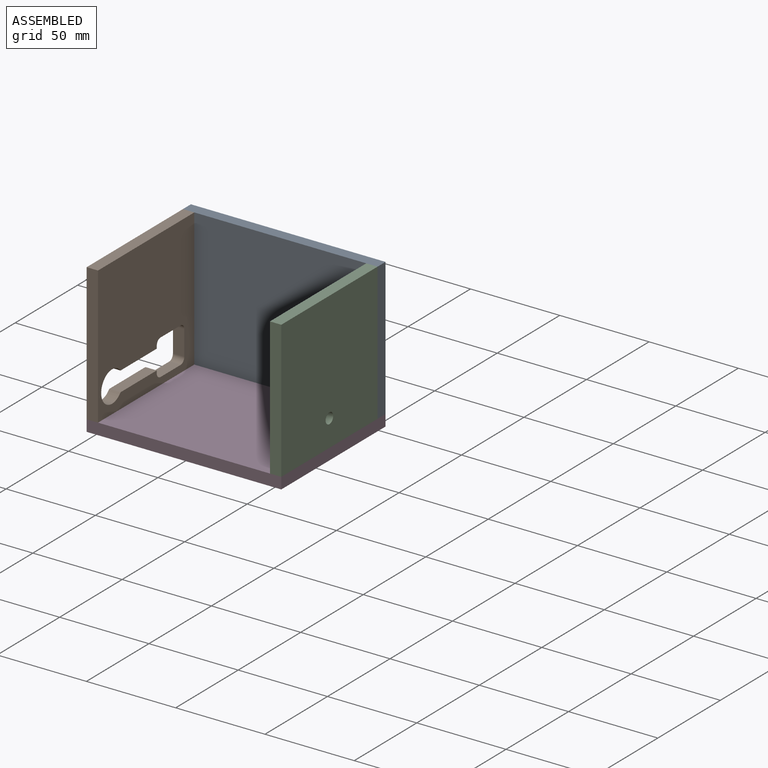
[diagram: assembled view]
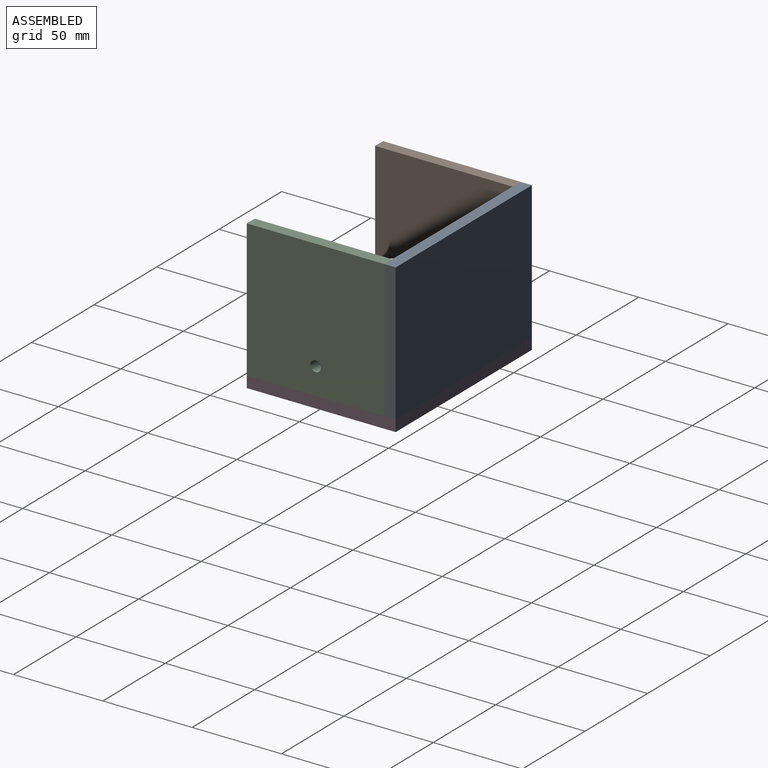
[diagram: assembled view, second angle]
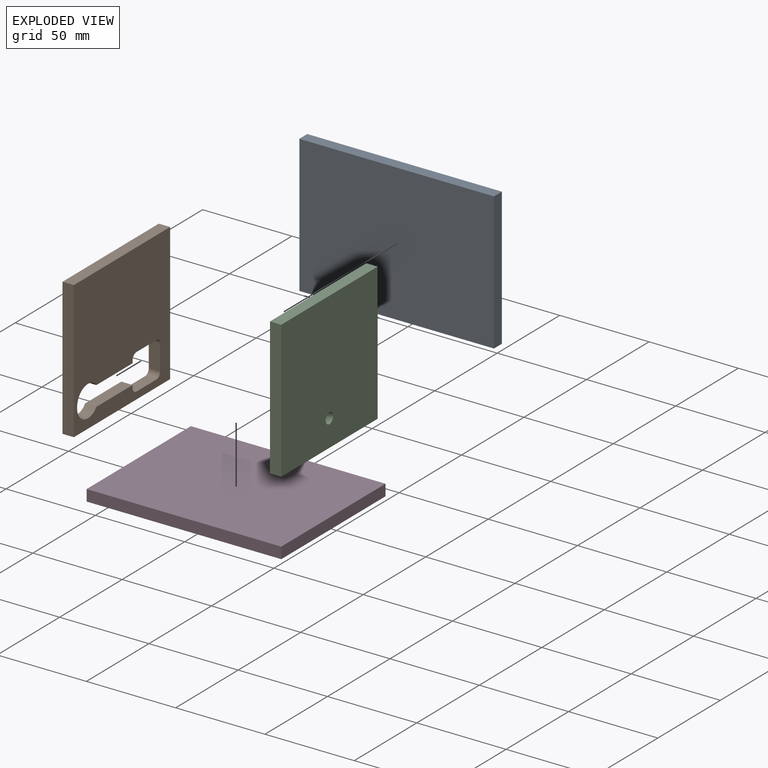
[diagram: exploded view]
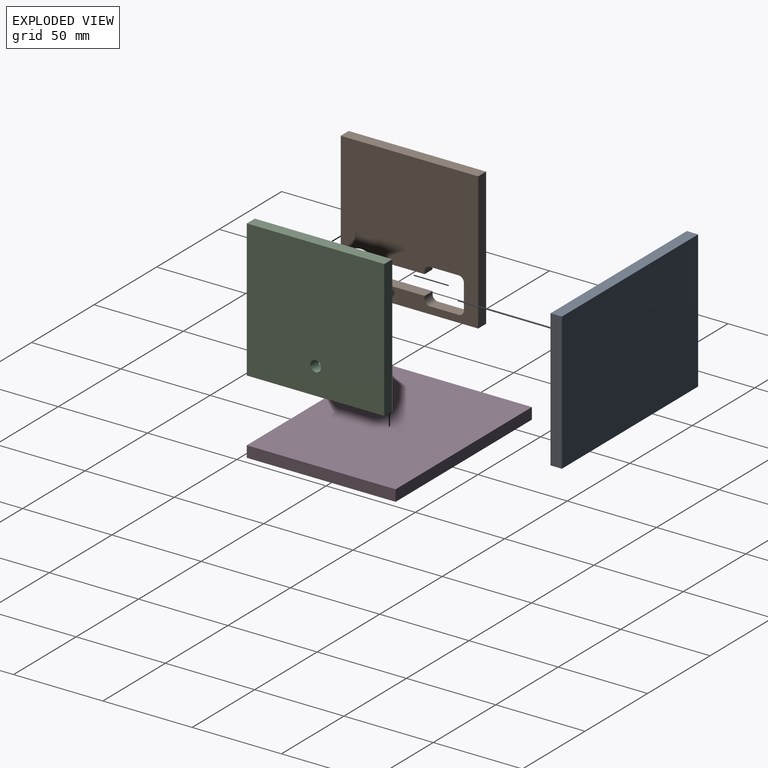
[diagram: exploded view, second angle]
ASSEMBLY  parts=4 mates=3
PART A: 6 faces, bbox 109x6.4x77 mm
  f0: plane 109x6.35mm, normal (0,0,1), area 692.2mm2, adj f1,f3,f4,f5
  f1: plane 77x6.35mm, normal (-1,0,0), area 488.9mm2, adj f0,f2,f4,f5
  f2: plane 109x6.35mm, normal (0,0,-1), area 692.2mm2, adj f1,f3,f4,f5
  f3: plane 77x6.35mm, normal (1,0,0), area 488.9mm2, adj f0,f2,f4,f5
  f4: plane 109x77mm, normal (0,-1,0), area 8393mm2, adj f0,f1,f2,f3
  f5: plane 109x77mm, normal (0,1,0), area 8393mm2, adj f0,f1,f2,f3
PART B: 18 faces, bbox 77x6.4x77 mm
  f0: plane 77x6.35mm, normal (0,0,1), area 488.9mm2, adj f1,f15,f16,f17
  f1: plane 77x6.35mm, normal (-1,0,0), area 488.9mm2, adj f0,f2,f16,f17
  f2: plane 77x6.35mm, normal (0,0,-1), area 488.9mm2, adj f1,f15,f16,f17
  f3: cylinder r=3mm len=6.35mm, axis (0,1,0), area 29.9mm2, adj f4,f14,f16,f17
  f4: plane 16x6.35mm, normal (0,0,1), area 101.6mm2, adj f3,f5,f16,f17
  f5: cylinder r=3mm len=6.35mm, axis (0,1,0), area 29.9mm2, adj f4,f6,f16,f17
  f6: plane 14x6.35mm, normal (1,0,0), area 88.9mm2, adj f5,f7,f16,f17
  f7: cylinder r=3mm len=6.35mm, axis (0,1,0), area 29.9mm2, adj f6,f8,f16,f17
  f8: plane 16x6.35mm, normal (0,0,-1), area 101.6mm2, adj f7,f9,f16,f17
  f9: cylinder r=3mm len=6.35mm, axis (0,1,0), area 29.9mm2, adj f8,f10,f16,f17
  f10: plane 6.35x1.5mm, normal (-1,0,0), area 9.5mm2, adj f9,f11,f16,f17
  f11: plane 28.95x6.35mm, normal (0,0,-1), area 183.8mm2, adj f10,f12,f16,f17
  f12: cylinder r=8.73mm len=17.46mm, axis (0,1,0), area 272.8mm2, adj f11,f13,f16,f17
  f13: plane 28.95x6.35mm, normal (0,0,1), area 183.8mm2, adj f12,f14,f16,f17
  f14: plane 6.35x1.5mm, normal (-1,0,0), area 9.5mm2, adj f3,f13,f16,f17
  f15: plane 77x6.35mm, normal (1,0,0), area 488.9mm2, adj f0,f2,f16,f17
  f16: plane 77x77mm, normal (0,-1,0), area 4953.4mm2, adj f0,f1,f2,f3,f4,f5,f6,f7
  f17: plane 77x77mm, normal (0,1,0), area 4953.4mm2, adj f0,f1,f2,f3,f4,f5,f6,f7
PART C: 7 faces, bbox 77x6.4x77 mm
  f0: plane 77x6.35mm, normal (0,0,1), area 488.9mm2, adj f1,f4,f5,f6
  f1: plane 77x6.35mm, normal (-1,0,0), area 488.9mm2, adj f0,f2,f5,f6
  f2: plane 77x6.35mm, normal (0,0,-1), area 488.9mm2, adj f1,f4,f5,f6
  f3: cylinder r=3mm len=6.35mm, axis (0,1,0), area 119.7mm2, adj f5,f6
  f4: plane 77x6.35mm, normal (1,0,0), area 488.9mm2, adj f0,f2,f5,f6
  f5: plane 77x77mm, normal (0,-1,0), area 5900.7mm2, adj f0,f1,f2,f3,f4
  f6: plane 77x77mm, normal (0,1,0), area 5900.7mm2, adj f0,f1,f2,f3,f4
PART D: 6 faces, bbox 109x83.4x6.4 mm
  f0: plane 83.35x6.35mm, normal (1,0,0), area 529.3mm2, adj f1,f3,f4,f5
  f1: plane 109x6.35mm, normal (0,1,0), area 692.2mm2, adj f0,f2,f4,f5
  f2: plane 83.35x6.35mm, normal (-1,0,0), area 529.3mm2, adj f1,f3,f4,f5
  f3: plane 109x6.35mm, normal (0,-1,0), area 692.2mm2, adj f0,f2,f4,f5
  f4: plane 109x83.35mm, normal (0,0,1), area 9085.1mm2, adj f0,f1,f2,f3
  f5: plane 109x83.35mm, normal (0,0,-1), area 9085.1mm2, adj f0,f1,f2,f3
PLACE A rot(axis=(-0.63,0,0.78),0deg) t=(-4.35,39.04,41.49)mm
PLACE B rot(axis=(0,0,-1),90deg) t=(-52.5,-5.81,41.49)mm
PLACE C rot(axis=(0,0,-1),90deg) t=(50.15,-5.81,41.49)mm
PLACE D t=(-4.35,-2.64,-3.36)mm fixed
MATE fastened B.f1 <-> A.f4  axis (0,1,0) through (-58.85,32.69,2.99)mm
MATE fastened C.f4 <-> D.f3  axis (0,-1,0) through (50.15,-44.31,2.99)mm
MATE fastened A.f1 <-> D.f2  axis (-1,0,0) through (-58.85,39.04,2.99)mm
